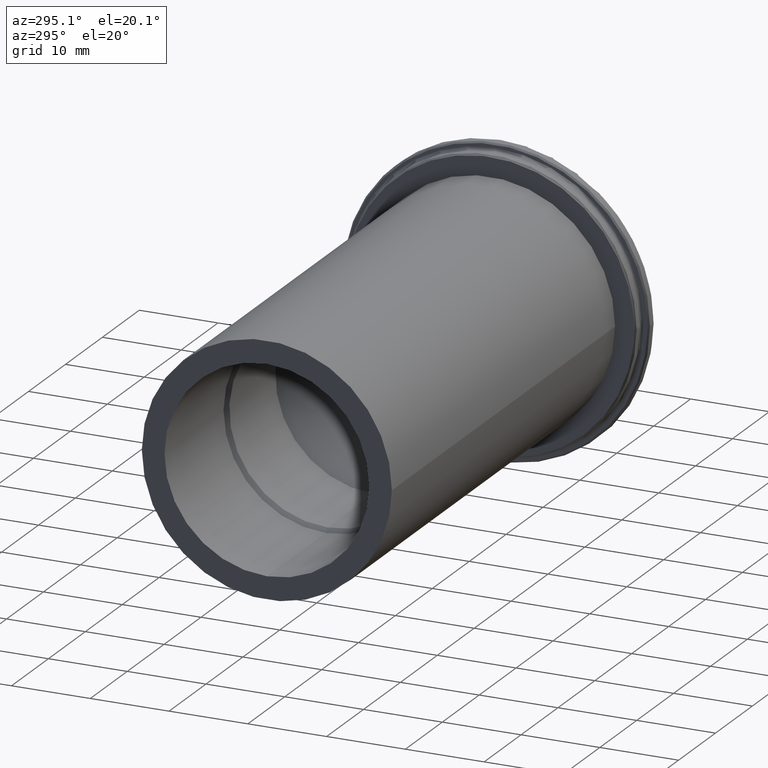
[diagram: clean part render]
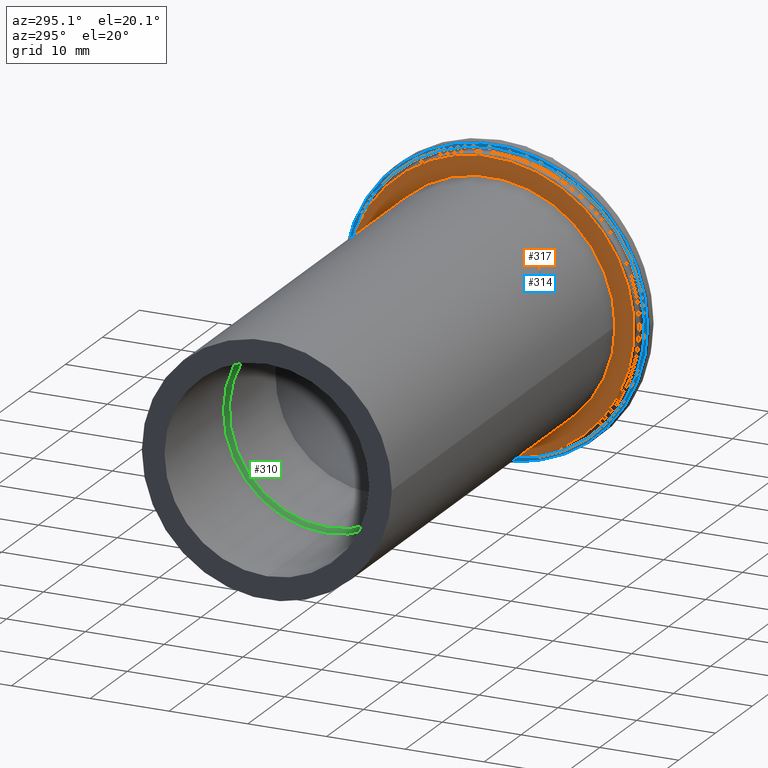
[diagram: same view with three faces highlighted in distinct colors, each labeled with its STEP entity id]
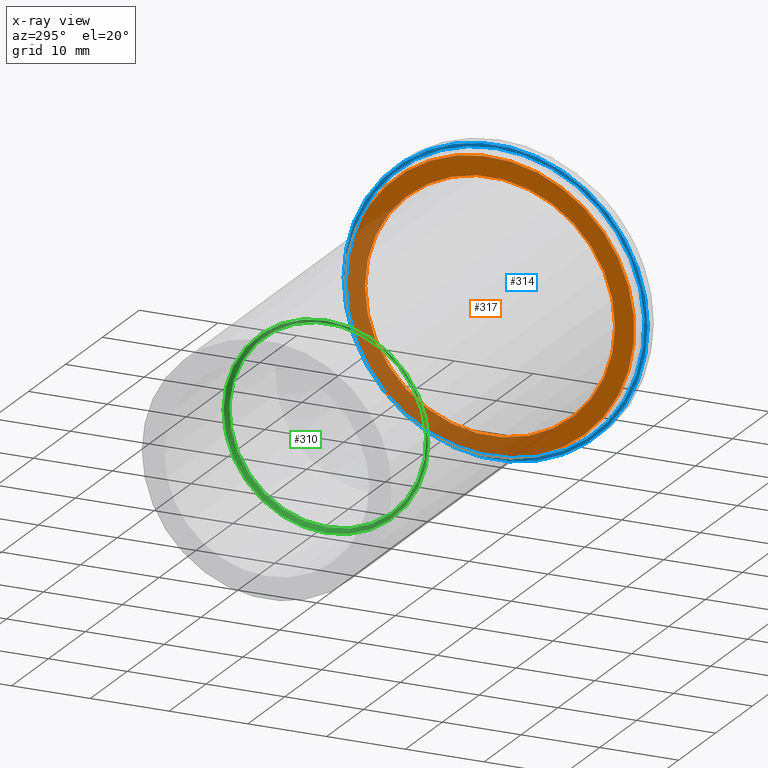
[diagram: x-ray of the same camera — body ghosted, the three highlighted faces saturated]
A machine part, auxiliary view with three faces highlighted in distinct colors.
The next image is the same camera in x-ray (body ghosted, the three faces saturated) — at least one of them is partly hidden behind the body in this view.
Their STEP definitions:

[orange] entity #317 — the highlighted planar face has unit normal (-1, 0, 0).
#88=FACE_BOUND('',#127,.T.);
#92=PLANE('',#374);
#109=FACE_OUTER_BOUND('',#126,.T.);
#126=EDGE_LOOP('',(#281));
#127=EDGE_LOOP('',(#282));
#170=CIRCLE('',#370,18.3);
#173=CIRCLE('',#375,15.875);
#196=VERTEX_POINT('',#570);
#199=VERTEX_POINT('',#580);
#225=EDGE_CURVE('',#196,#196,#170,.T.);
#229=EDGE_CURVE('',#199,#199,#173,.T.);
#281=ORIENTED_EDGE('',*,*,#225,.F.);
#282=ORIENTED_EDGE('',*,*,#229,.T.);
#317=ADVANCED_FACE('',(#109,#88),#92,.T.);
#370=AXIS2_PLACEMENT_3D('',#572,#459,#460);
#374=AXIS2_PLACEMENT_3D('',#579,#468,#469);
#375=AXIS2_PLACEMENT_3D('',#581,#470,#471);
#459=DIRECTION('center_axis',(1.,0.,0.));
#460=DIRECTION('ref_axis',(0.,-1.,0.));
#468=DIRECTION('center_axis',(-1.,0.,0.));
#469=DIRECTION('ref_axis',(0.,0.,1.));
#470=DIRECTION('center_axis',(1.,0.,0.));
#471=DIRECTION('ref_axis',(0.,0.,-1.));
#570=CARTESIAN_POINT('',(-3.,18.3,2.24110364243966E-15));
#572=CARTESIAN_POINT('Origin',(-3.,0.,0.));
#579=CARTESIAN_POINT('Origin',(-3.,18.5,0.));
#580=CARTESIAN_POINT('',(-2.99999999999997,-15.875,-1.94412679364642E-15));
#581=CARTESIAN_POINT('Origin',(-2.99999999999997,0.,0.));

[blue] entity #314 — the highlighted planar face has unit normal (-1, 0, 0).
#87=FACE_BOUND('',#123,.T.);
#91=PLANE('',#365);
#106=FACE_OUTER_BOUND('',#122,.T.);
#122=EDGE_LOOP('',(#268));
#123=EDGE_LOOP('',(#269));
#164=CIRCLE('',#361,19.3);
#167=CIRCLE('',#366,18.9);
#190=VERTEX_POINT('',#553);
#193=VERTEX_POINT('',#563);
#217=EDGE_CURVE('',#190,#190,#164,.T.);
#221=EDGE_CURVE('',#193,#193,#167,.T.);
#268=ORIENTED_EDGE('',*,*,#217,.F.);
#269=ORIENTED_EDGE('',*,*,#221,.F.);
#314=ADVANCED_FACE('',(#106,#87),#91,.T.);
#361=AXIS2_PLACEMENT_3D('',#555,#439,#440);
#365=AXIS2_PLACEMENT_3D('',#562,#448,#449);
#366=AXIS2_PLACEMENT_3D('',#564,#450,#451);
#439=DIRECTION('center_axis',(1.,0.,0.));
#440=DIRECTION('ref_axis',(0.,-1.,0.));
#448=DIRECTION('center_axis',(-1.,0.,0.));
#449=DIRECTION('ref_axis',(0.,0.,1.));
#450=DIRECTION('center_axis',(-1.,0.,0.));
#451=DIRECTION('ref_axis',(0.,-1.,1.83697019872103E-16));
#553=CARTESIAN_POINT('',(-1.5,19.3,2.36356832235439E-15));
#555=CARTESIAN_POINT('Origin',(-1.5,0.,0.));
#562=CARTESIAN_POINT('Origin',(-1.5,19.5,0.));
#563=CARTESIAN_POINT('',(-1.5,-2.3145824503885E-15,18.9));
#564=CARTESIAN_POINT('Origin',(-1.5,0.,0.));

[green] entity #310 — the highlighted conical surface has half-angle 45 deg.
#96=CONICAL_SURFACE('',#354,6.5,0.785398163397448);
#102=FACE_OUTER_BOUND('',#118,.T.);
#118=EDGE_LOOP('',(#249,#250,#251,#252));
#138=LINE('',#543,#148);
#148=VECTOR('',#426,6.5);
#159=CIRCLE('',#353,12.5);
#160=CIRCLE('',#355,13.);
#185=VERTEX_POINT('',#537);
#186=VERTEX_POINT('',#541);
#208=EDGE_CURVE('',#185,#185,#159,.T.);
#210=EDGE_CURVE('',#186,#186,#160,.T.);
#211=EDGE_CURVE('',#186,#185,#138,.T.);
#249=ORIENTED_EDGE('',*,*,#210,.T.);
#250=ORIENTED_EDGE('',*,*,#211,.T.);
#251=ORIENTED_EDGE('',*,*,#208,.T.);
#252=ORIENTED_EDGE('',*,*,#211,.F.);
#310=ADVANCED_FACE('',(#102),#96,.F.);
#353=AXIS2_PLACEMENT_3D('',#538,#419,#420);
#354=AXIS2_PLACEMENT_3D('',#540,#422,#423);
#355=AXIS2_PLACEMENT_3D('',#542,#424,#425);
#419=DIRECTION('center_axis',(1.,0.,0.));
#420=DIRECTION('ref_axis',(0.,0.,1.));
#422=DIRECTION('center_axis',(-1.,0.,0.));
#423=DIRECTION('ref_axis',(0.,0.,1.));
#424=DIRECTION('center_axis',(-1.,0.,0.));
#425=DIRECTION('ref_axis',(0.,0.,1.));
#426=DIRECTION('',(0.707106781186548,8.65956056235493E-17,0.707106781186547));
#537=CARTESIAN_POINT('',(-47.,1.53080849893419E-15,-12.5));
#538=CARTESIAN_POINT('Origin',(-47.,0.,0.));
#540=CARTESIAN_POINT('Origin',(-41.,0.,0.));
#541=CARTESIAN_POINT('',(-47.5,-1.59204083889156E-15,-13.));
#542=CARTESIAN_POINT('Origin',(-47.5,0.,0.));
#543=CARTESIAN_POINT('',(-41.,-7.9602041944578E-16,-6.5));